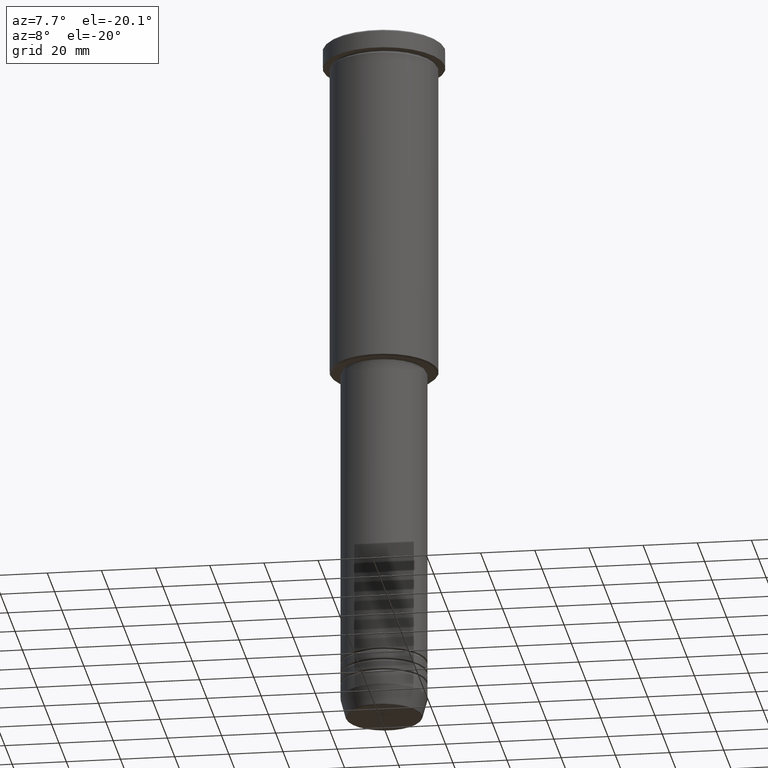
[diagram: clean part render]
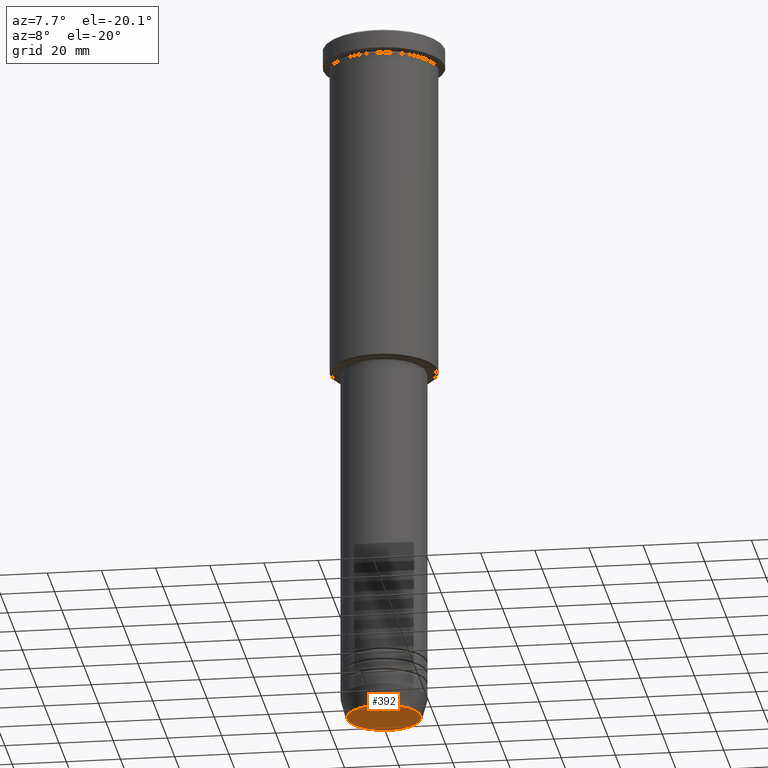
[diagram: same view with one face highlighted and labeled with its STEP entity id]
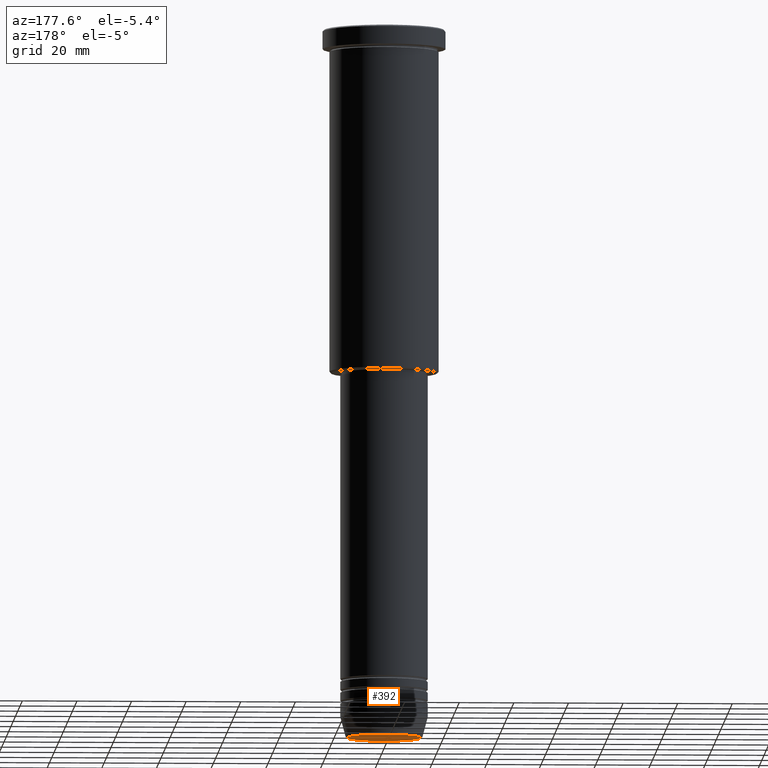
[diagram: same view with one face highlighted and labeled with its STEP entity id]
A machine part, auxiliary view. The second image highlights one B-rep face of the part: STEP entity #392.
A second angle (auxiliary view) of the same face is appended — the face is thin or edge-on in the first view.
In plain terms, the highlighted planar face has unit normal (0, -0, 1).
Its self-contained STEP definition (entity closure, byte-faithful):
#9 = EDGE_CURVE ( 'NONE', #464, #850, #519, .T. ) ;
#26 = CARTESIAN_POINT ( 'NONE',  ( 0.000000000000000000, 0.000000000000000000, -260.0000000000000000 ) ) ;
#86 = AXIS2_PLACEMENT_3D ( 'NONE', #467, #986, #284 ) ;
#121 = PLANE ( 'NONE',  #955 ) ;
#254 = AXIS2_PLACEMENT_3D ( 'NONE', #1121, #666, #1023 ) ;
#268 = ORIENTED_EDGE ( 'NONE', *, *, #9, .T. ) ;
#284 = DIRECTION ( 'NONE',  ( 1.000000000000000000, 0.000000000000000000, 0.000000000000000000 ) ) ;
#391 = FACE_OUTER_BOUND ( 'NONE', #979, .T. ) ;
#392 = ADVANCED_FACE ( 'NONE', ( #391 ), #121, .F. ) ;
#460 = EDGE_CURVE ( 'NONE', #850, #464, #896, .T. ) ;
#464 = VERTEX_POINT ( 'NONE', #634 ) ;
#467 = CARTESIAN_POINT ( 'NONE',  ( 0.000000000000000000, 0.000000000000000000, -260.0000000000000000 ) ) ;
#519 = CIRCLE ( 'NONE', #254, 13.60671756277709399 ) ;
#594 = CARTESIAN_POINT ( 'NONE',  ( 13.60671756277709399, 0.000000000000000000, -260.0000000000000000 ) ) ;
#634 = CARTESIAN_POINT ( 'NONE',  ( -13.60671756277709399, 1.695915260300171258E-15, -260.0000000000000000 ) ) ;
#666 = DIRECTION ( 'NONE',  ( 0.000000000000000000, 0.000000000000000000, -1.000000000000000000 ) ) ;
#667 = ORIENTED_EDGE ( 'NONE', *, *, #460, .T. ) ;
#828 = DIRECTION ( 'NONE',  ( 0.000000000000000000, -0.000000000000000000, 1.000000000000000000 ) ) ;
#850 = VERTEX_POINT ( 'NONE', #594 ) ;
#896 = CIRCLE ( 'NONE', #86, 13.60671756277709399 ) ;
#955 = AXIS2_PLACEMENT_3D ( 'NONE', #26, #828, #1124 ) ;
#979 = EDGE_LOOP ( 'NONE', ( #667, #268 ) ) ;
#986 = DIRECTION ( 'NONE',  ( 0.000000000000000000, 0.000000000000000000, -1.000000000000000000 ) ) ;
#1023 = DIRECTION ( 'NONE',  ( 1.000000000000000000, 0.000000000000000000, 0.000000000000000000 ) ) ;
#1121 = CARTESIAN_POINT ( 'NONE',  ( 0.000000000000000000, 0.000000000000000000, -260.0000000000000000 ) ) ;
#1124 = DIRECTION ( 'NONE',  ( 1.000000000000000000, 0.000000000000000000, 0.000000000000000000 ) ) ;